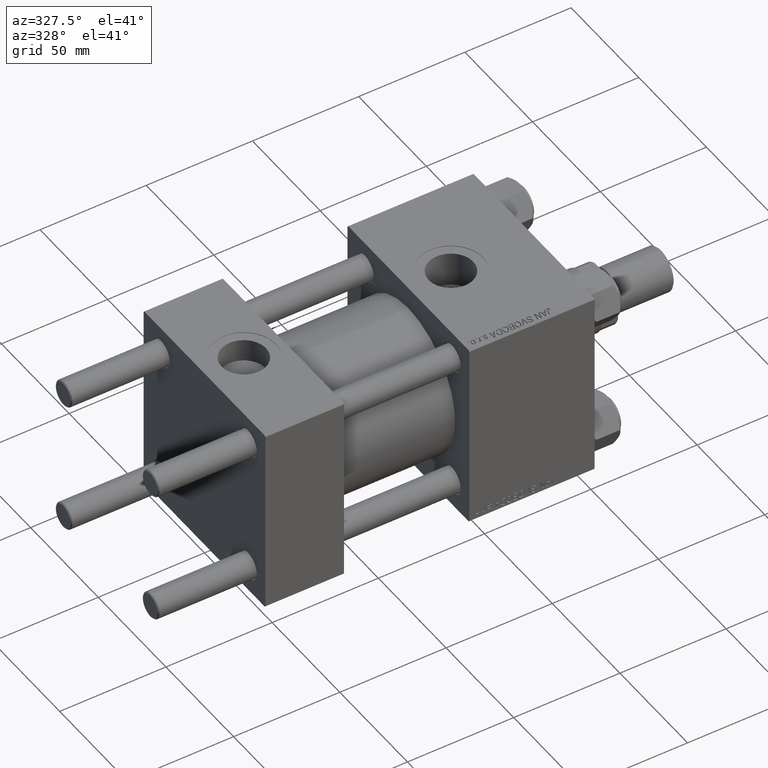
[diagram: clean part render]
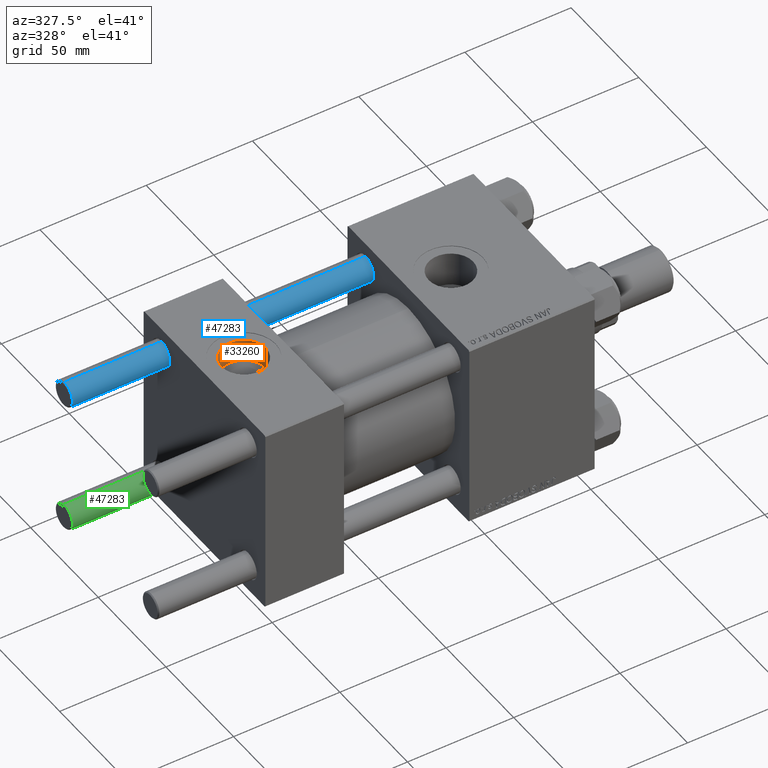
[diagram: same view with three faces highlighted in distinct colors, each labeled with its STEP entity id]
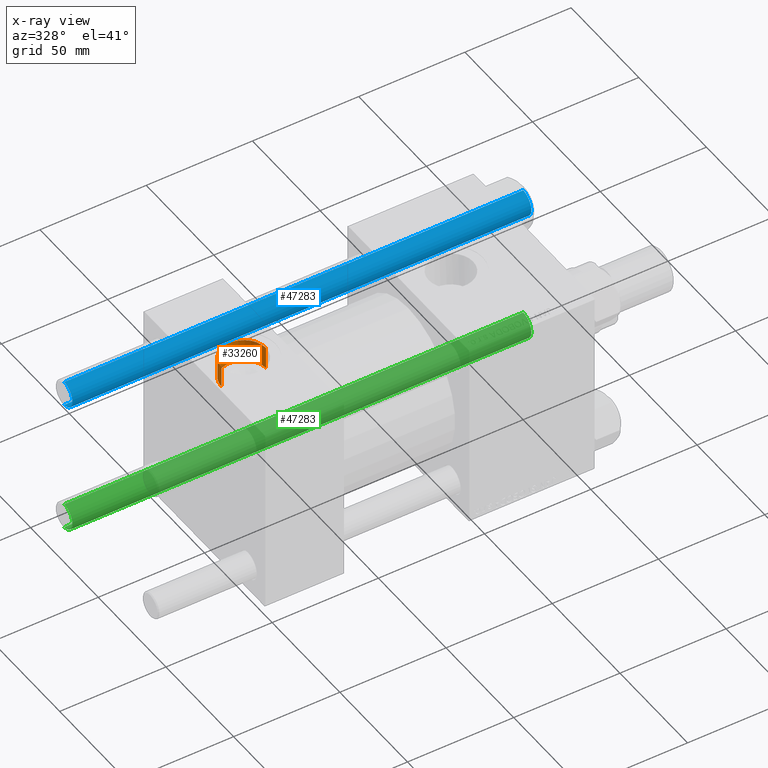
[diagram: x-ray of the same camera — body ghosted, the three highlighted faces saturated]
A machine part, auxiliary view with three faces highlighted in distinct colors.
The next image is the same camera in x-ray (body ghosted, the three faces saturated) — at least one of them is partly hidden behind the body in this view.
Their STEP definitions:

[orange] entity #33260 — the highlighted cylindrical surface (edge-blend (fillet) strip) has radius 10.48 mm, axis along (0, 0, 1).
#1527 = VERTEX_POINT ( 'NONE', #26719 ) ;
#2323 = VECTOR ( 'NONE', #7112, 1000.000000000000000 ) ;
#5915 = DIRECTION ( 'NONE',  ( 0.000000000000000000, 0.000000000000000000, 1.000000000000000000 ) ) ;
#6042 = CARTESIAN_POINT ( 'NONE',  ( 18.50000000000000000, -8.673617379884038628E-15, 34.20000000000000995 ) ) ;
#6628 = CARTESIAN_POINT ( 'NONE',  ( 8.019999999999999574, -7.390187534377611561E-15, 34.20000000000000995 ) ) ;
#7112 = DIRECTION ( 'NONE',  ( -0.000000000000000000, -0.000000000000000000, 1.000000000000000000 ) ) ;
#9116 = AXIS2_PLACEMENT_3D ( 'NONE', #6042, #18496, #14687 ) ;
#10155 = CARTESIAN_POINT ( 'NONE',  ( 18.50000000000000000, -8.673617379884038628E-15, 34.20000000000000995 ) ) ;
#10471 = VERTEX_POINT ( 'NONE', #14899 ) ;
#13675 = CYLINDRICAL_SURFACE ( 'NONE', #9116, 10.48000000000000043 ) ;
#14249 = LINE ( 'NONE', #6628, #2323 ) ;
#14687 = DIRECTION ( 'NONE',  ( 1.000000000000000000, 0.000000000000000000, 0.000000000000000000 ) ) ;
#14899 = CARTESIAN_POINT ( 'NONE',  ( 28.98000000000000043, -8.673617379884038628E-15, 34.20000000000000995 ) ) ;
#17281 = DIRECTION ( 'NONE',  ( 0.000000000000000000, 0.000000000000000000, 1.000000000000000000 ) ) ;
#18496 = DIRECTION ( 'NONE',  ( -0.000000000000000000, -0.000000000000000000, 1.000000000000000000 ) ) ;
#18719 = VECTOR ( 'NONE', #25528, 1000.000000000000000 ) ;
#20688 = LINE ( 'NONE', #40308, #18719 ) ;
#21445 = DIRECTION ( 'NONE',  ( 1.000000000000000000, 0.000000000000000000, 0.000000000000000000 ) ) ;
#23253 = VERTEX_POINT ( 'NONE', #28861 ) ;
#24990 = EDGE_CURVE ( 'NONE', #10471, #49334, #20688, .T. ) ;
#25278 = CARTESIAN_POINT ( 'NONE',  ( 18.50000000000000000, -8.673617379884038628E-15, 44.80000000000000426 ) ) ;
#25507 = ORIENTED_EDGE ( 'NONE', *, *, #26917, .T. ) ;
#25528 = DIRECTION ( 'NONE',  ( -0.000000000000000000, -0.000000000000000000, 1.000000000000000000 ) ) ;
#25687 = DIRECTION ( 'NONE',  ( 1.000000000000000000, 0.000000000000000000, 0.000000000000000000 ) ) ;
#26719 = CARTESIAN_POINT ( 'NONE',  ( 8.019999999999999574, -7.390187534377611561E-15, 34.20000000000000995 ) ) ;
#26917 = EDGE_CURVE ( 'NONE', #49334, #23253, #35836, .T. ) ;
#28861 = CARTESIAN_POINT ( 'NONE',  ( 8.019999999999999574, -7.390187534377611561E-15, 44.80000000000000426 ) ) ;
#31415 = ORIENTED_EDGE ( 'NONE', *, *, #37191, .F. ) ;
#32824 = CIRCLE ( 'NONE', #38505, 10.48000000000000043 ) ;
#33260 = ADVANCED_FACE ( 'NONE', ( #45774 ), #13675, .F. ) ;
#35836 = CIRCLE ( 'NONE', #40774, 10.48000000000000043 ) ;
#37191 = EDGE_CURVE ( 'NONE', #10471, #1527, #32824, .T. ) ;
#38505 = AXIS2_PLACEMENT_3D ( 'NONE', #10155, #17281, #25687 ) ;
#39658 = CARTESIAN_POINT ( 'NONE',  ( 28.98000000000000043, -8.673617379884038628E-15, 44.80000000000000426 ) ) ;
#40308 = CARTESIAN_POINT ( 'NONE',  ( 28.98000000000000043, -8.673617379884038628E-15, 34.20000000000000995 ) ) ;
#40774 = AXIS2_PLACEMENT_3D ( 'NONE', #25278, #5915, #21445 ) ;
#40851 = ORIENTED_EDGE ( 'NONE', *, *, #24990, .T. ) ;
#44325 = ORIENTED_EDGE ( 'NONE', *, *, #46129, .F. ) ;
#45774 = FACE_OUTER_BOUND ( 'NONE', #47226, .T. ) ;
#46129 = EDGE_CURVE ( 'NONE', #1527, #23253, #14249, .T. ) ;
#47226 = EDGE_LOOP ( 'NONE', ( #44325, #31415, #40851, #25507 ) ) ;
#49334 = VERTEX_POINT ( 'NONE', #39658 ) ;

[blue] entity #47283 — the highlighted cylindrical surface (edge-blend (fillet) strip) has radius 6 mm, axis along (-1, -0, -0).
#1515 = AXIS2_PLACEMENT_3D ( 'NONE', #46663, #22452, #11741 ) ;
#1700 = VERTEX_POINT ( 'NONE', #29743 ) ;
#2852 = CARTESIAN_POINT ( 'NONE',  ( 0.000000000000000000, 0.000000000000000000, 217.0000000000000000 ) ) ;
#4736 = CARTESIAN_POINT ( 'NONE',  ( 6.000000000000000888, 7.347880794884120722E-16, 216.4999999999999716 ) ) ;
#6345 = LINE ( 'NONE', #7090, #49514 ) ;
#6503 = CARTESIAN_POINT ( 'NONE',  ( -6.000000000000000888, 0.000000000000000000, 0.4999999999999449329 ) ) ;
#7027 = DIRECTION ( 'NONE',  ( 1.000000000000000000, 0.000000000000000000, 0.000000000000000000 ) ) ;
#7090 = CARTESIAN_POINT ( 'NONE',  ( 6.000000000000000888, 7.347880794884120722E-16, 217.0000000000000000 ) ) ;
#7317 = DIRECTION ( 'NONE',  ( -0.000000000000000000, -0.000000000000000000, -1.000000000000000000 ) ) ;
#11741 = DIRECTION ( 'NONE',  ( 1.000000000000000000, 0.000000000000000000, 0.000000000000000000 ) ) ;
#13483 = EDGE_CURVE ( 'NONE', #19740, #14697, #30649, .T. ) ;
#13566 = DIRECTION ( 'NONE',  ( -1.000000000000000000, 0.000000000000000000, 0.000000000000000000 ) ) ;
#14697 = VERTEX_POINT ( 'NONE', #47217 ) ;
#18069 = ORIENTED_EDGE ( 'NONE', *, *, #45316, .F. ) ;
#18271 = VERTEX_POINT ( 'NONE', #6503 ) ;
#19740 = VERTEX_POINT ( 'NONE', #4736 ) ;
#20201 = CIRCLE ( 'NONE', #1515, 6.000000000000000888 ) ;
#21283 = EDGE_CURVE ( 'NONE', #18271, #1700, #20201, .T. ) ;
#22452 = DIRECTION ( 'NONE',  ( -0.000000000000000000, -0.000000000000000000, 1.000000000000000000 ) ) ;
#22890 = DIRECTION ( 'NONE',  ( -0.000000000000000000, -0.000000000000000000, -1.000000000000000000 ) ) ;
#23309 = DIRECTION ( 'NONE',  ( 0.000000000000000000, 0.000000000000000000, -1.000000000000000000 ) ) ;
#24327 = VECTOR ( 'NONE', #7317, 1000.000000000000000 ) ;
#26668 = LINE ( 'NONE', #42221, #24327 ) ;
#29625 = FACE_OUTER_BOUND ( 'NONE', #34525, .T. ) ;
#29743 = CARTESIAN_POINT ( 'NONE',  ( 6.000000000000000888, 7.347880794884120722E-16, 0.4999999999999449329 ) ) ;
#30649 = CIRCLE ( 'NONE', #41246, 6.000000000000000888 ) ;
#32497 = ORIENTED_EDGE ( 'NONE', *, *, #46586, .T. ) ;
#33281 = CARTESIAN_POINT ( 'NONE',  ( 0.000000000000000000, 0.000000000000000000, 216.4999999999999716 ) ) ;
#34525 = EDGE_LOOP ( 'NONE', ( #18069, #47787, #32497, #42781 ) ) ;
#40509 = AXIS2_PLACEMENT_3D ( 'NONE', #2852, #45414, #13566 ) ;
#41246 = AXIS2_PLACEMENT_3D ( 'NONE', #33281, #23309, #7027 ) ;
#42221 = CARTESIAN_POINT ( 'NONE',  ( -6.000000000000000888, 0.000000000000000000, 217.0000000000000000 ) ) ;
#42781 = ORIENTED_EDGE ( 'NONE', *, *, #21283, .T. ) ;
#45151 = CYLINDRICAL_SURFACE ( 'NONE', #40509, 6.000000000000000888 ) ;
#45316 = EDGE_CURVE ( 'NONE', #19740, #1700, #6345, .T. ) ;
#45414 = DIRECTION ( 'NONE',  ( -0.000000000000000000, -0.000000000000000000, -1.000000000000000000 ) ) ;
#46586 = EDGE_CURVE ( 'NONE', #14697, #18271, #26668, .T. ) ;
#46663 = CARTESIAN_POINT ( 'NONE',  ( 0.000000000000000000, 0.000000000000000000, 0.4999999999999449329 ) ) ;
#47217 = CARTESIAN_POINT ( 'NONE',  ( -6.000000000000000888, 0.000000000000000000, 216.4999999999999716 ) ) ;
#47283 = ADVANCED_FACE ( 'NONE', ( #29625 ), #45151, .T. ) ;
#47787 = ORIENTED_EDGE ( 'NONE', *, *, #13483, .T. ) ;
#49514 = VECTOR ( 'NONE', #22890, 1000.000000000000000 ) ;

[green] entity #47283 — the highlighted cylindrical surface (edge-blend (fillet) strip) has radius 6 mm, axis along (1, 0, -0).
#1515 = AXIS2_PLACEMENT_3D ( 'NONE', #46663, #22452, #11741 ) ;
#1700 = VERTEX_POINT ( 'NONE', #29743 ) ;
#2852 = CARTESIAN_POINT ( 'NONE',  ( 0.000000000000000000, 0.000000000000000000, 217.0000000000000000 ) ) ;
#4736 = CARTESIAN_POINT ( 'NONE',  ( 6.000000000000000888, 7.347880794884120722E-16, 216.4999999999999716 ) ) ;
#6345 = LINE ( 'NONE', #7090, #49514 ) ;
#6503 = CARTESIAN_POINT ( 'NONE',  ( -6.000000000000000888, 0.000000000000000000, 0.4999999999999449329 ) ) ;
#7027 = DIRECTION ( 'NONE',  ( 1.000000000000000000, 0.000000000000000000, 0.000000000000000000 ) ) ;
#7090 = CARTESIAN_POINT ( 'NONE',  ( 6.000000000000000888, 7.347880794884120722E-16, 217.0000000000000000 ) ) ;
#7317 = DIRECTION ( 'NONE',  ( -0.000000000000000000, -0.000000000000000000, -1.000000000000000000 ) ) ;
#11741 = DIRECTION ( 'NONE',  ( 1.000000000000000000, 0.000000000000000000, 0.000000000000000000 ) ) ;
#13483 = EDGE_CURVE ( 'NONE', #19740, #14697, #30649, .T. ) ;
#13566 = DIRECTION ( 'NONE',  ( -1.000000000000000000, 0.000000000000000000, 0.000000000000000000 ) ) ;
#14697 = VERTEX_POINT ( 'NONE', #47217 ) ;
#18069 = ORIENTED_EDGE ( 'NONE', *, *, #45316, .F. ) ;
#18271 = VERTEX_POINT ( 'NONE', #6503 ) ;
#19740 = VERTEX_POINT ( 'NONE', #4736 ) ;
#20201 = CIRCLE ( 'NONE', #1515, 6.000000000000000888 ) ;
#21283 = EDGE_CURVE ( 'NONE', #18271, #1700, #20201, .T. ) ;
#22452 = DIRECTION ( 'NONE',  ( -0.000000000000000000, -0.000000000000000000, 1.000000000000000000 ) ) ;
#22890 = DIRECTION ( 'NONE',  ( -0.000000000000000000, -0.000000000000000000, -1.000000000000000000 ) ) ;
#23309 = DIRECTION ( 'NONE',  ( 0.000000000000000000, 0.000000000000000000, -1.000000000000000000 ) ) ;
#24327 = VECTOR ( 'NONE', #7317, 1000.000000000000000 ) ;
#26668 = LINE ( 'NONE', #42221, #24327 ) ;
#29625 = FACE_OUTER_BOUND ( 'NONE', #34525, .T. ) ;
#29743 = CARTESIAN_POINT ( 'NONE',  ( 6.000000000000000888, 7.347880794884120722E-16, 0.4999999999999449329 ) ) ;
#30649 = CIRCLE ( 'NONE', #41246, 6.000000000000000888 ) ;
#32497 = ORIENTED_EDGE ( 'NONE', *, *, #46586, .T. ) ;
#33281 = CARTESIAN_POINT ( 'NONE',  ( 0.000000000000000000, 0.000000000000000000, 216.4999999999999716 ) ) ;
#34525 = EDGE_LOOP ( 'NONE', ( #18069, #47787, #32497, #42781 ) ) ;
#40509 = AXIS2_PLACEMENT_3D ( 'NONE', #2852, #45414, #13566 ) ;
#41246 = AXIS2_PLACEMENT_3D ( 'NONE', #33281, #23309, #7027 ) ;
#42221 = CARTESIAN_POINT ( 'NONE',  ( -6.000000000000000888, 0.000000000000000000, 217.0000000000000000 ) ) ;
#42781 = ORIENTED_EDGE ( 'NONE', *, *, #21283, .T. ) ;
#45151 = CYLINDRICAL_SURFACE ( 'NONE', #40509, 6.000000000000000888 ) ;
#45316 = EDGE_CURVE ( 'NONE', #19740, #1700, #6345, .T. ) ;
#45414 = DIRECTION ( 'NONE',  ( -0.000000000000000000, -0.000000000000000000, -1.000000000000000000 ) ) ;
#46586 = EDGE_CURVE ( 'NONE', #14697, #18271, #26668, .T. ) ;
#46663 = CARTESIAN_POINT ( 'NONE',  ( 0.000000000000000000, 0.000000000000000000, 0.4999999999999449329 ) ) ;
#47217 = CARTESIAN_POINT ( 'NONE',  ( -6.000000000000000888, 0.000000000000000000, 216.4999999999999716 ) ) ;
#47283 = ADVANCED_FACE ( 'NONE', ( #29625 ), #45151, .T. ) ;
#47787 = ORIENTED_EDGE ( 'NONE', *, *, #13483, .T. ) ;
#49514 = VECTOR ( 'NONE', #22890, 1000.000000000000000 ) ;